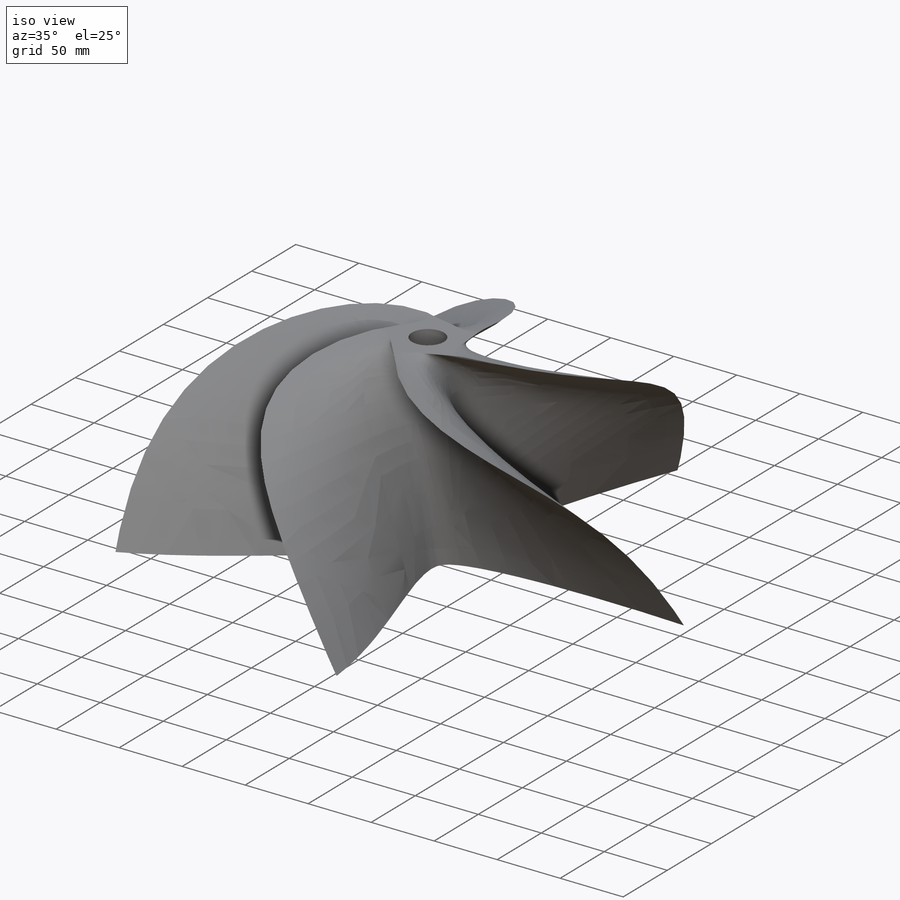
[diagram: iso view]
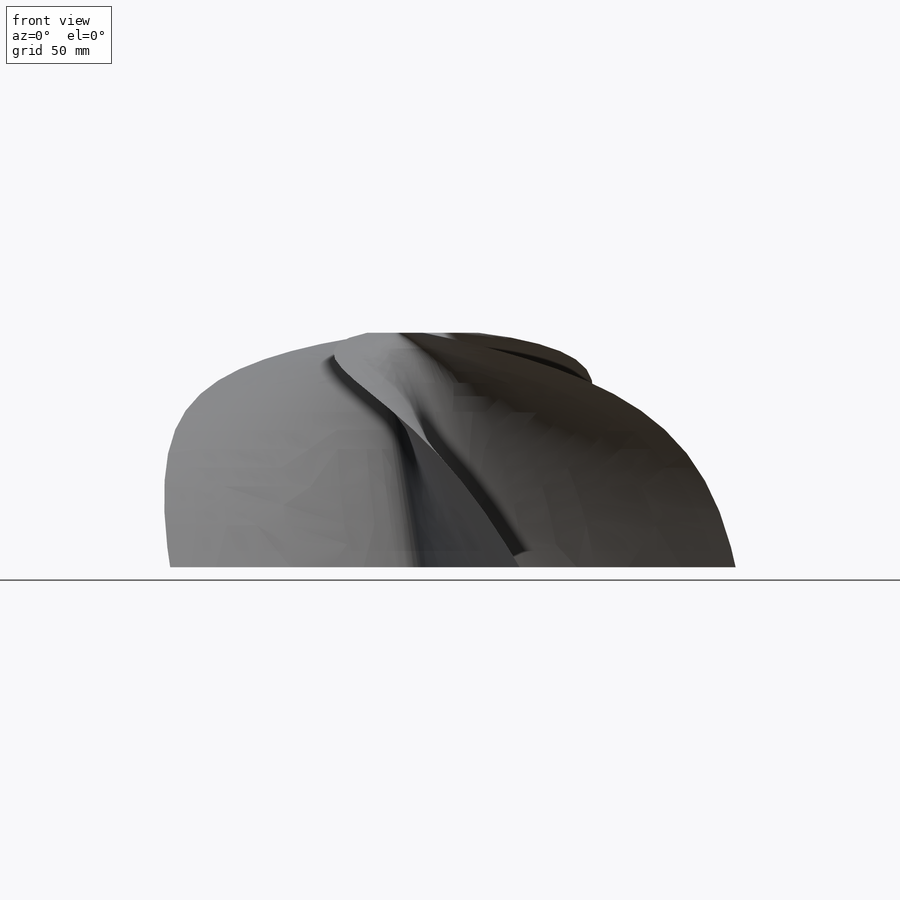
[diagram: front view]
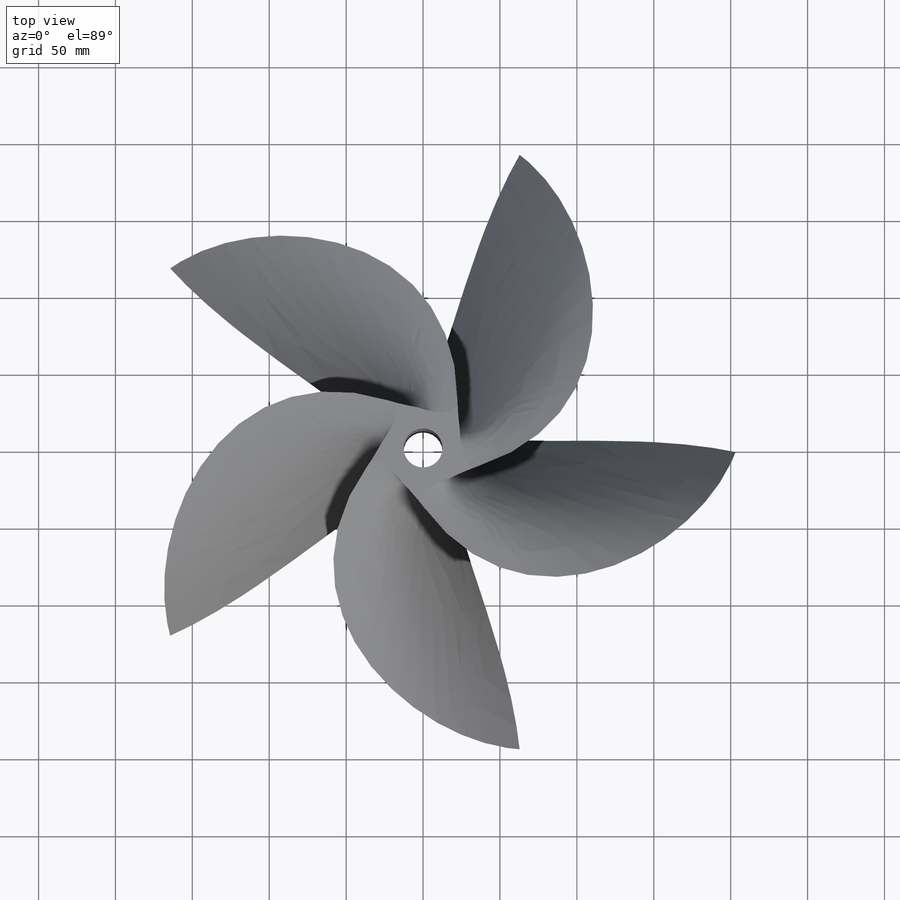
[diagram: top view]
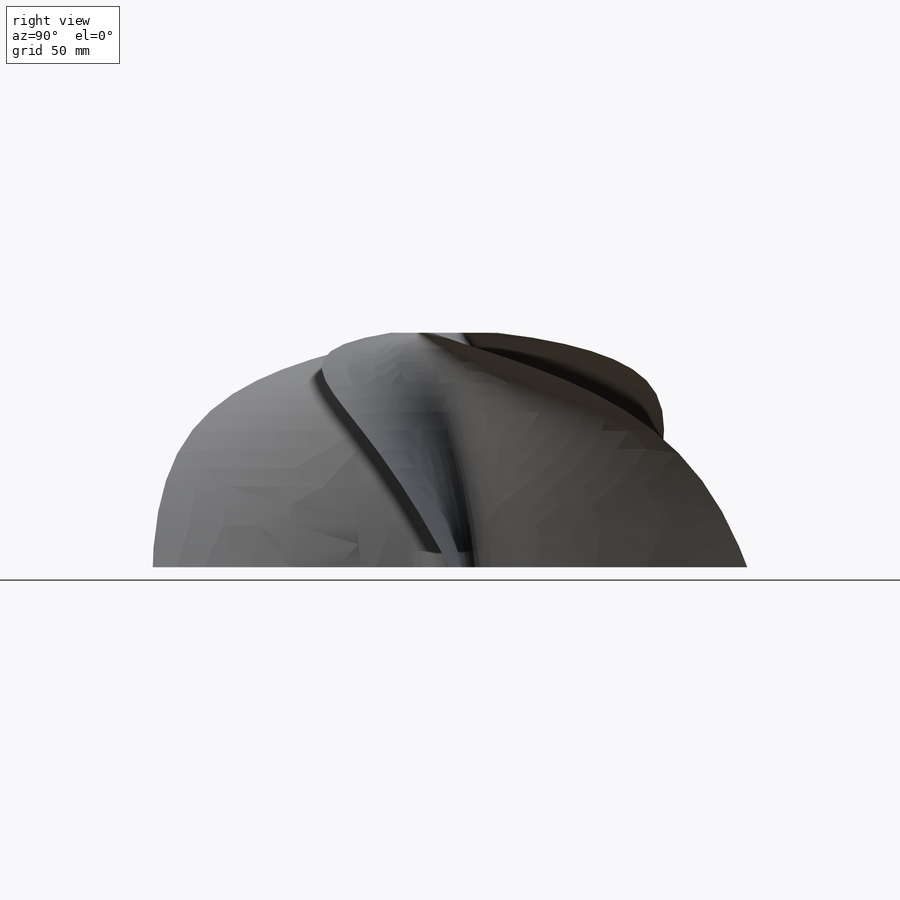
[diagram: right view]
SOLIDWORKS PART (.sldprt)
format: sldprt  version: not decoded by parser v0  size: 1,688,064 bytes
history: native  units: mm
features: sketch x11, plane x3, pattern_circular x2, material x1, surface_op x1, cut_extrude x1 (+16 scaffold rows collapsed)
feature tree (35):
  scaffold x16  (default folders/planes/origin — collapsed)
  material  "A36"
  sketch  "Sketch2"  dims[D1=152.4mm D2=12.7mm]
  plane  "Plane1"
  plane  "Plane2"
  plane  "Plane3"
  sketch  "Sketch1"  dims[c1.D1=50.8mm c1.D2=406.4mm c1.D3=76.2mm c1.D4=152.4mm c2.D4=72.0deg c2.D5=~42.724419mm c3.D5=72.0deg]
  sketch  "Sketch6"
  surface_op  "Surface-Extrude1"
  sketch  "3DSketch2"
  sketch  "Sketch3"  dims[D1=360.0deg]
  sketch  "Sketch5"
  pattern_circular  "CirPattern1"  Count=2 Angle=72deg
  sketch  "Sketch7"
  sketch  "Sketch8"
  sketch  "Sketch9"
  sketch  "Sketch10"
  pattern_circular  "CirPattern2"  Count=5 Angle=360deg
  sketch  "Sketch11"  dims[D1=25.4mm]
  cut_extrude  "Extrude1"  Depth=4.7625mm Thickness=4.7625mm
decode coverage: 7 of 15 modeling features carry decoded parameters
note: ~ marks probable driven/reference dimensions
note: suppression state not decoded; provenance and decode notes live in map.json
